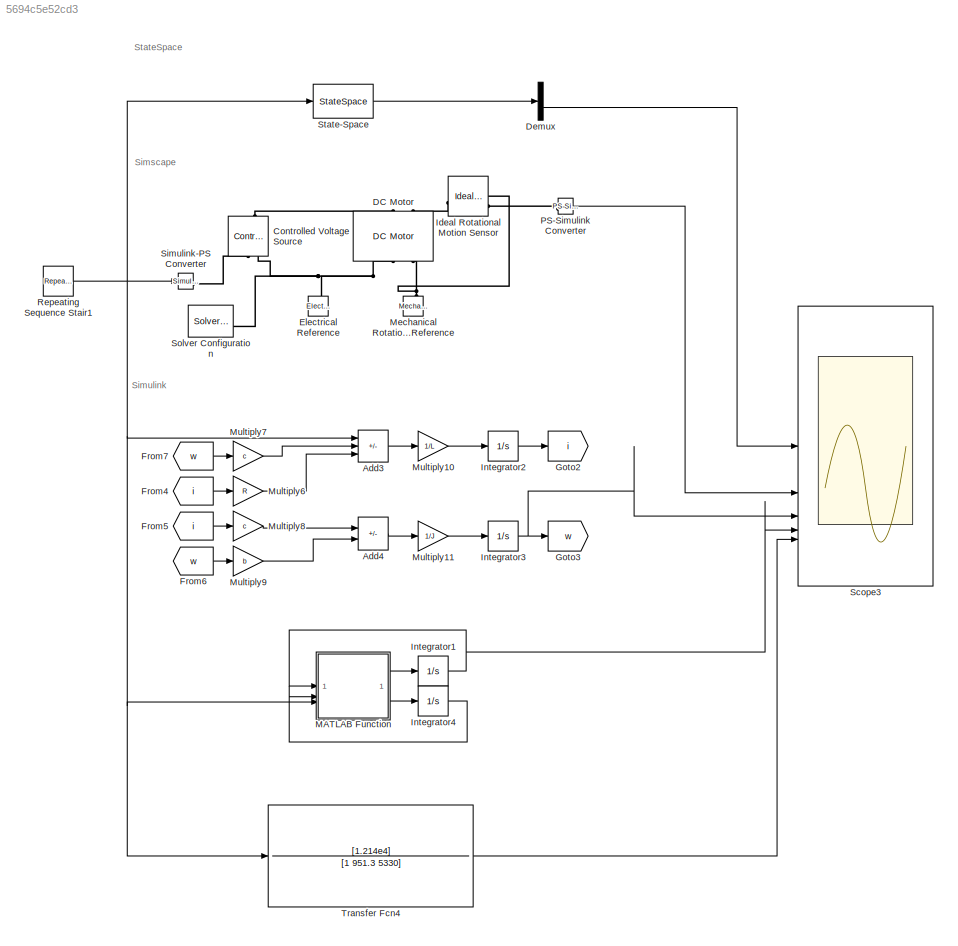
MODEL slx_5694c5e52cd3
KIND model
CONFIG AbsTol = auto
CONFIG EnableMultiTasking = off
CONFIG FixedStep = auto
CONFIG MaxStep = auto
CONFIG MinStep = auto
CONFIG RelTol = 1e-3
CONFIG SampleTimeConstraint = Unconstrained
CONFIG SolverName = VariableStepAuto
CONFIG StartTime = 0.0
CONFIG StopTime = 10.0
BLOCK [Sum] Add3
  IconShape = rectangular
  Inputs = +--
BLOCK [Sum] Add4
  IconShape = rectangular
  Inputs = +-
BLOCK [Reference] Controlled Voltage Source  REF=fl_lib/Electrical/Electrical Sources/Controlled Voltage
Source
  NameLocation = right
  SourceBlock = fl_lib/Electrical/Electrical Sources/Controlled Voltage\nSource
  SourceType = Controlled Voltage\nSource
BLOCK [Reference] DC Motor  REF=ee_lib/Electromechanical/Brushed Motors/DC Motor
  NameLocation = right
  SourceBlock = ee_lib/Electromechanical/Brushed Motors/DC Motor
  SourceType = DC Motor
BLOCK [Demux] Demux
  Outputs = 2
BLOCK [Reference] Electrical Reference  REF=fl_lib/Electrical/Electrical Elements/Electrical Reference
  NameLocation = right
  SourceBlock = fl_lib/Electrical/Electrical Elements/Electrical Reference
  SourceType = Electrical Reference
BLOCK [From] From4
  GotoTag = i
BLOCK [From] From5
  GotoTag = i
BLOCK [From] From6
  GotoTag = w
BLOCK [From] From7
  GotoTag = w
BLOCK [Goto] Goto2
  GotoTag = i
BLOCK [Goto] Goto3
  GotoTag = w
BLOCK [Reference] Ideal Rotational Motion Sensor  REF=fl_lib/Mechanical/Mechanical Sensors/Ideal Rotational
Motion Sensor
  SourceBlock = fl_lib/Mechanical/Mechanical Sensors/Ideal Rotational\nMotion Sensor
  SourceType = Ideal Rotational\nMotion Sensor
BLOCK [Integrator] Integrator1
BLOCK [Integrator] Integrator2
BLOCK [Integrator] Integrator3
BLOCK [Integrator] Integrator4
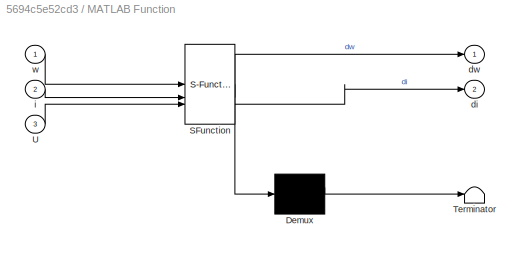
BLOCK [SubSystem] MATLAB Function
  ErrorFcn = Stateflow.Translate.translate
  PermitHierarchicalResolution = ExplicitOnly
  SFBlockType = MATLAB Function
  TreatAsAtomicUnit = on
BLOCK [Demux] MATLAB Function/ Demux 
  Outputs = 1
BLOCK [S-Function] MATLAB Function/ SFunction 
  EnableBusSupport = on
  FunctionName = sf_sfun
  PortCounts = [3 3]
  SFcnIsStateOwnerBlock = off
  SFunctionDeploymentMode = off
  Tag = Stateflow S-Function 2
BLOCK [Terminator] MATLAB Function/ Terminator 
BLOCK [Inport] MATLAB Function/U
  Port = 3
BLOCK [Outport] MATLAB Function/di
  Port = 2
BLOCK [Outport] MATLAB Function/dw
BLOCK [Inport] MATLAB Function/i
  Port = 2
BLOCK [Inport] MATLAB Function/w
BLOCK [Reference] Mechanical Rotational Reference  REF=fl_lib/Mechanical/Rotational Elements/Mechanical
Rotational Reference
  NameLocation = right
  SourceBlock = fl_lib/Mechanical/Rotational Elements/Mechanical\nRotational Reference
  SourceType = Mechanical\nRotational Reference
BLOCK [Gain] Multiply10
  Gain = 1/L
BLOCK [Gain] Multiply11
  Gain = 1/J
BLOCK [Gain] Multiply6
  Gain = R
BLOCK [Gain] Multiply7
  Gain = c
BLOCK [Gain] Multiply8
  Gain = c
BLOCK [Gain] Multiply9
  Gain = b
BLOCK [Reference] PS-Simulink Converter  REF=nesl_utility/PS-Simulink
Converter
  SourceBlock = nesl_utility/PS-Simulink\nConverter
  SourceType = PS-Simulink\nConverter
BLOCK [Reference] Repeating Sequence Stair1  REF=simulink/Sources/Repeating
Sequence
Stair
  SourceBlock = simulink/Sources/Repeating\nSequence\nStair
  SourceType = Repeating Sequence Stair
BLOCK [Scope] Scope3
  Floating = off
  NumInputPorts = 5
  ScopeSpecificationString = Simulink.scopes.TimeScopeBlockCfg('CurrentConfiguration', extmgr.ConfigurationSet(extmgr.Configuration('Core','General UI',true),extmgr.Configuration('Core','Source UI',true),extmgr.Configuration('Sources','WiredSimulink',true,'DataLoggingVariableName','ScopeData2'),extmgr.Configuration('Visuals','Time Domain',true,'SerializedDisplays',{struct('MinYLimReal','-34.17107','MaxYLimReal','34.17107','YL...<+4116ch>
BLOCK [Reference] Simulink-PS Converter  REF=nesl_utility/Simulink-PS
Converter
  SourceBlock = nesl_utility/Simulink-PS\nConverter
  SourceType = Simulink-PS\nConverter
BLOCK [Reference] Solver Configuration  REF=nesl_utility/Solver
Configuration
  SourceBlock = nesl_utility/Solver\nConfiguration
  SourceType = Solver\nConfiguration
BLOCK [StateSpace] State-Space
  A = A
  B = B
  C = C
  D = D
  InitialCondition = 0
BLOCK [TransferFcn] Transfer Fcn4
  Denominator = [1 951.3 5330]
  Numerator = [1.214e4]
ANNOTATION (root): Simscape
ANNOTATION (root): Simulink
ANNOTATION (root): StateSpace
LINE Add3:1 -> Multiply10:1
LINE Add4:1 -> Multiply11:1
LINE Demux:2 -> Scope3:1
LINE From4:1 -> Multiply6:1
LINE From5:1 -> Multiply8:1
LINE From6:1 -> Multiply9:1
LINE From7:1 -> Multiply7:1
NET Integrator1:1 -> MATLAB Function:1, Scope3:4
LINE Integrator2:1 -> Goto2:1
NET Integrator3:1 -> Goto3:1, Scope3:3
LINE Integrator4:1 -> MATLAB Function:2
LINE MATLAB Function:1 -> Integrator1:1
LINE MATLAB Function:2 -> Integrator4:1
LINE Multiply10:1 -> Integrator2:1
LINE Multiply11:1 -> Integrator3:1
LINE Multiply6:1 -> Add3:3
LINE Multiply7:1 -> Add3:2
LINE Multiply8:1 -> Add4:1
LINE Multiply9:1 -> Add4:2
LINE PS-Simulink Converter:1 -> Scope3:2
NET Repeating Sequence Stair1:1 -> Add3:1, MATLAB Function:3, Simulink-PS Converter:1, State-Space:1, Transfer Fcn4:1
LINE State-Space:1 -> Demux:1
LINE Transfer Fcn4:1 -> Scope3:5
PLINE Controlled Voltage Source:LConn1 -- DC Motor:LConn1
PLINE Controlled Voltage Source:RConn1 -- Simulink-PS Converter:RConn1
PNET net1: Controlled Voltage Source:RConn2 -- DC Motor:RConn1 -- Electrical Reference:LConn1 -- Solver Configuration:RConn1
PLINE DC Motor:LConn2 -- Ideal Rotational Motion Sensor:LConn1
PNET net2: DC Motor:RConn2 -- Ideal Rotational Motion Sensor:RConn1 -- Mechanical Rotational Reference:LConn1
PLINE Ideal Rotational Motion Sensor:RConn2 -- PS-Simulink Converter:LConn1
note: NET lines group one-source signal fan-out (src -> all destinations, sorted); 1:1 wires keep LINE; PNET lines group multi-terminal physical nets as a canonical sorted terminal list (undirected conserving connections); 2-terminal nets keep the pairwise PLINE form
CHART MATLAB Function states=1 transitions=1
  STATE_LABEL 'eML_blk_kernel()'
  STATE_LABEL 'SCRIPT:\nfunction [dw,di] = fcn(w,i,U)\n\n    R= 13.3;\n    c=0.34;\n    b=0.00253;\n    L=14e-3;\n    J=0.002;\n\n    di = (U-R*i-c*w)/L;\n    dw = (c*i-0-b*w)/J;\n\nend'
CHART  states=0 transitions=0
